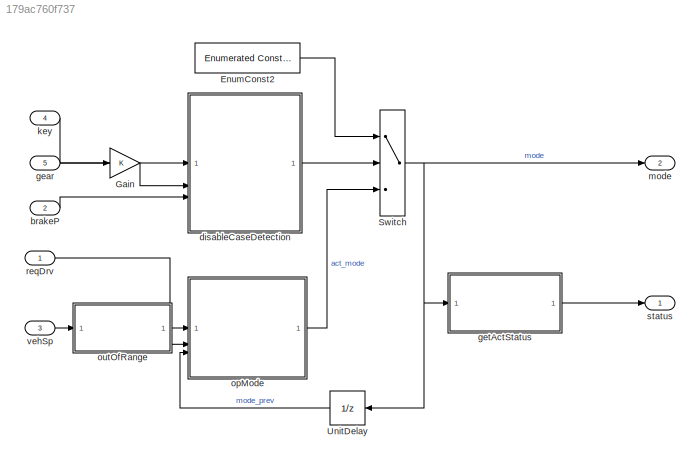
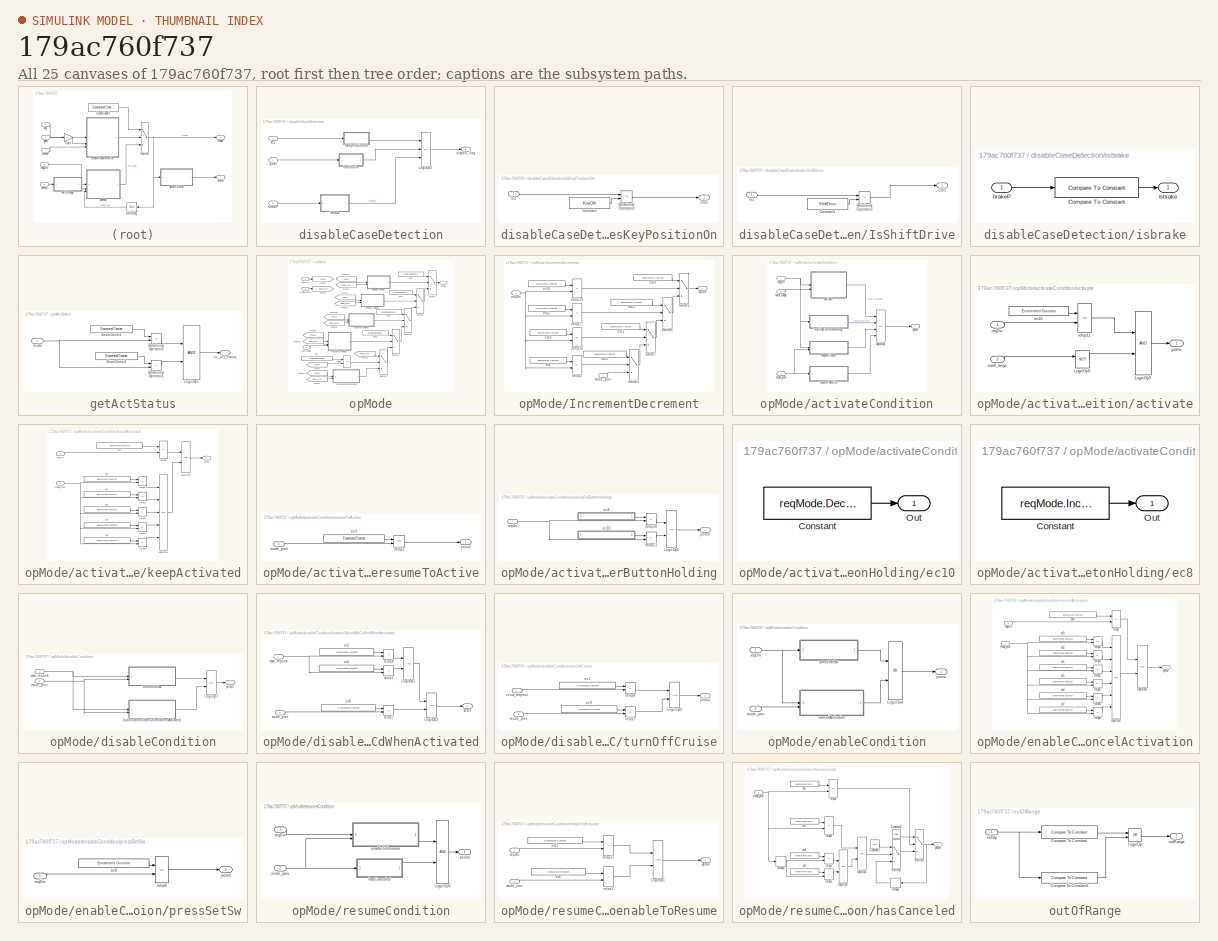
[diagram: thumbnail index - all 25 canvases of the model, root first then tree order]
MODEL slx_179ac760f737
KIND model
CONFIG AbsTol = auto
CONFIG EnableMultiTasking = off
CONFIG FixedStep = 0.01
CONFIG MaxStep = auto
CONFIG MinStep = auto
CONFIG RelTol = 1e-3
CONFIG SampleTimeConstraint = Unconstrained
CONFIG SolverName = FixedStepDiscrete
CONFIG StartTime = 0.0
CONFIG StopTime = 10.0
BLOCK [Reference] EnumConst2  REF=simulink/Sources/Enumerated
Constant
  SourceBlock = simulink/Sources/Enumerated\nConstant
  SourceType = Enumerated Constant
BLOCK [Gain] Gain
BLOCK [Switch] Switch
  Criteria = u2 ~= 0
  InputSameDT = off
  SaturateOnIntegerOverflow = off
BLOCK [UnitDelay] UnitDelay
  AttributesFormatString = Init = %<InitialCondition>
  HasFrameUpgradeWarning = on
  InitialCondition = opMode.Disable
  SampleTime = -1
BLOCK [Inport] brakeP
  OutDataTypeStr = double
  Port = 2
  PortDimensions = 1
  SampleTime = [0.01,0]
  SamplingMode = Sample based
  SignalType = real
BLOCK [SubSystem] disableCaseDetection
BLOCK [SubSystem] disableCaseDetection/IsKeyPositionOn
BLOCK [Constant] disableCaseDetection/IsKeyPositionOn/Constant
  Value = KeyON
BLOCK [Inport] disableCaseDetection/IsKeyPositionOn/In1
BLOCK [Outport] disableCaseDetection/IsKeyPositionOn/Out1
  VectorParamsAs1DForOutWhenUnconnected = off
BLOCK [RelationalOperator] disableCaseDetection/IsKeyPositionOn/Relational Operator2
  InputSameDT = off
  Operator = ~=
  OutDataTypeStr = boolean
BLOCK [SubSystem] disableCaseDetection/IsShiftDrive
BLOCK [Constant] disableCaseDetection/IsShiftDrive/Constant1
  Value = ShiftDrive
BLOCK [Inport] disableCaseDetection/IsShiftDrive/In1
BLOCK [Outport] disableCaseDetection/IsShiftDrive/Out1
  VectorParamsAs1DForOutWhenUnconnected = off
BLOCK [RelationalOperator] disableCaseDetection/IsShiftDrive/Relational Operator3
  InputSameDT = off
  Operator = ~=
  OutDataTypeStr = boolean
BLOCK [Logic] disableCaseDetection/LogicOp1
  AllPortsSameDT = off
  Inputs = 3
  Operator = OR
  OutDataTypeStr = boolean
BLOCK [Inport] disableCaseDetection/brakeP
  Port = 3
BLOCK [Outport] disableCaseDetection/disable_flag
  VectorParamsAs1DForOutWhenUnconnected = off
BLOCK [Inport] disableCaseDetection/gear
  Port = 2
BLOCK [SubSystem] disableCaseDetection/isbrake
BLOCK [Reference] disableCaseDetection/isbrake/Compare To Constant  REF=simulink/Logic and Bit
Operations/Compare
To Constant
  SourceBlock = simulink/Logic and Bit\nOperations/Compare\nTo Constant
  SourceType = Compare To Constant
BLOCK [Inport] disableCaseDetection/isbrake/brakeP
BLOCK [Outport] disableCaseDetection/isbrake/isbrake
  VectorParamsAs1DForOutWhenUnconnected = off
BLOCK [Inport] disableCaseDetection/key
BLOCK [Inport] gear
  OutDataTypeStr = uint8
  Port = 5
  PortDimensions = 1
  SampleTime = [0.01,0]
  SamplingMode = Sample based
  SignalType = real
BLOCK [SubSystem] getActStatus
BLOCK [Reference] getActStatus/EnumConst1  REF=simulink/Sources/Enumerated
Constant
  SourceBlock = simulink/Sources/Enumerated\nConstant
  SourceType = Enumerated Constant
BLOCK [Reference] getActStatus/EnumConst2  REF=simulink/Sources/Enumerated
Constant
  SourceBlock = simulink/Sources/Enumerated\nConstant
  SourceType = Enumerated Constant
BLOCK [Logic] getActStatus/LogicOp1
  AllPortsSameDT = off
  OutDataTypeStr = boolean
BLOCK [RelationalOperator] getActStatus/Relational Operator1
  InputSameDT = off
  Operator = ~=
  OutDataTypeStr = boolean
BLOCK [RelationalOperator] getActStatus/Relational Operator2
  InputSameDT = off
  Operator = ~=
  OutDataTypeStr = boolean
BLOCK [Outport] getActStatus/cc_act_status
  VectorParamsAs1DForOutWhenUnconnected = off
BLOCK [Inport] getActStatus/mode
BLOCK [Inport] key
  OutDataTypeStr = uint8
  Port = 4
  PortDimensions = 1
  SampleTime = [0.01,0]
  SamplingMode = Sample based
  SignalType = real
BLOCK [Outport] mode
  OutDataTypeStr = Enum: opMode
  Port = 2
  PortDimensions = 1
  SampleTime = [0.01,0]
  SamplingMode = Sample based
  SignalType = real
  VectorParamsAs1DForOutWhenUnconnected = off
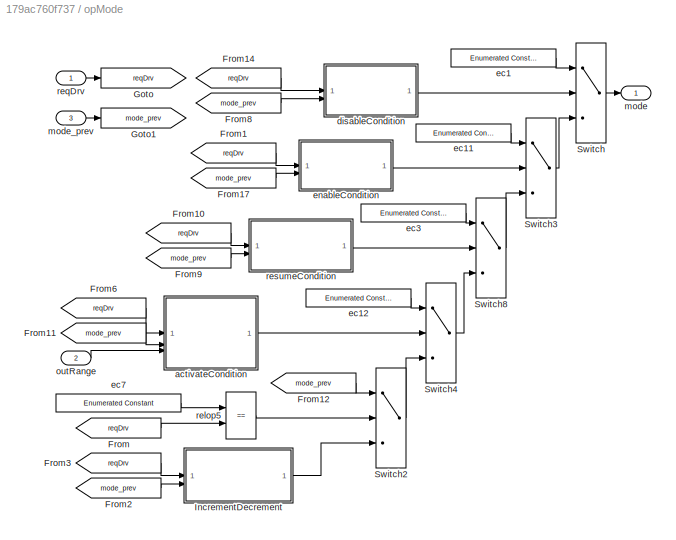
BLOCK [SubSystem] opMode
  TreatAsAtomicUnit = on
BLOCK [From] opMode/From
  GotoTag = reqDrv
BLOCK [From] opMode/From1
  GotoTag = reqDrv
BLOCK [From] opMode/From10
  GotoTag = reqDrv
BLOCK [From] opMode/From11
  GotoTag = mode_prev
BLOCK [From] opMode/From12
  GotoTag = mode_prev
BLOCK [From] opMode/From14
  GotoTag = reqDrv
BLOCK [From] opMode/From17
  GotoTag = mode_prev
BLOCK [From] opMode/From2
  GotoTag = mode_prev
BLOCK [From] opMode/From3
  GotoTag = reqDrv
BLOCK [From] opMode/From6
  GotoTag = reqDrv
BLOCK [From] opMode/From8
  GotoTag = mode_prev
BLOCK [From] opMode/From9
  GotoTag = mode_prev
BLOCK [Goto] opMode/Goto
  GotoTag = reqDrv
BLOCK [Goto] opMode/Goto1
  GotoTag = mode_prev
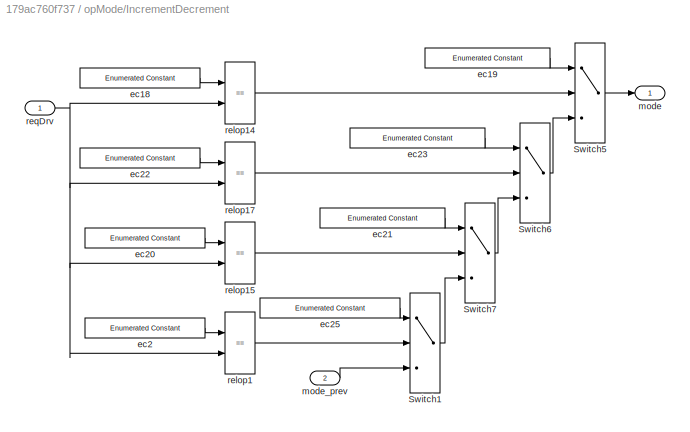
BLOCK [SubSystem] opMode/IncrementDecrement
BLOCK [Switch] opMode/IncrementDecrement/Switch1
  Criteria = u2 ~= 0
  InputSameDT = off
  SaturateOnIntegerOverflow = off
BLOCK [Switch] opMode/IncrementDecrement/Switch5
  Criteria = u2 ~= 0
  InputSameDT = off
  SaturateOnIntegerOverflow = off
BLOCK [Switch] opMode/IncrementDecrement/Switch6
  Criteria = u2 ~= 0
  InputSameDT = off
  SaturateOnIntegerOverflow = off
BLOCK [Switch] opMode/IncrementDecrement/Switch7
  Criteria = u2 ~= 0
  InputSameDT = off
  SaturateOnIntegerOverflow = off
BLOCK [Reference] opMode/IncrementDecrement/ec18  REF=simulink/Sources/Enumerated
Constant
  SourceBlock = simulink/Sources/Enumerated\nConstant
  SourceType = Enumerated Constant
BLOCK [Reference] opMode/IncrementDecrement/ec19  REF=simulink/Sources/Enumerated
Constant
  SourceBlock = simulink/Sources/Enumerated\nConstant
  SourceType = Enumerated Constant
BLOCK [Reference] opMode/IncrementDecrement/ec2  REF=simulink/Sources/Enumerated
Constant
  SourceBlock = simulink/Sources/Enumerated\nConstant
  SourceType = Enumerated Constant
BLOCK [Reference] opMode/IncrementDecrement/ec20  REF=simulink/Sources/Enumerated
Constant
  SourceBlock = simulink/Sources/Enumerated\nConstant
  SourceType = Enumerated Constant
BLOCK [Reference] opMode/IncrementDecrement/ec21  REF=simulink/Sources/Enumerated
Constant
  SourceBlock = simulink/Sources/Enumerated\nConstant
  SourceType = Enumerated Constant
BLOCK [Reference] opMode/IncrementDecrement/ec22  REF=simulink/Sources/Enumerated
Constant
  SourceBlock = simulink/Sources/Enumerated\nConstant
  SourceType = Enumerated Constant
BLOCK [Reference] opMode/IncrementDecrement/ec23  REF=simulink/Sources/Enumerated
Constant
  SourceBlock = simulink/Sources/Enumerated\nConstant
  SourceType = Enumerated Constant
BLOCK [Reference] opMode/IncrementDecrement/ec25  REF=simulink/Sources/Enumerated
Constant
  SourceBlock = simulink/Sources/Enumerated\nConstant
  SourceType = Enumerated Constant
BLOCK [Outport] opMode/IncrementDecrement/mode
  VectorParamsAs1DForOutWhenUnconnected = off
BLOCK [Inport] opMode/IncrementDecrement/mode_prev
  Port = 2
BLOCK [RelationalOperator] opMode/IncrementDecrement/relop1
  InputSameDT = off
  Operator = ==
  OutDataTypeStr = boolean
BLOCK [RelationalOperator] opMode/IncrementDecrement/relop14
  InputSameDT = off
  Operator = ==
  OutDataTypeStr = boolean
BLOCK [RelationalOperator] opMode/IncrementDecrement/relop15
  InputSameDT = off
  Operator = ==
  OutDataTypeStr = boolean
BLOCK [RelationalOperator] opMode/IncrementDecrement/relop17
  InputSameDT = off
  Operator = ==
  OutDataTypeStr = boolean
BLOCK [Inport] opMode/IncrementDecrement/reqDrv
BLOCK [Switch] opMode/Switch
  Criteria = u2 ~= 0
  InputSameDT = off
  SaturateOnIntegerOverflow = off
BLOCK [Switch] opMode/Switch2
  Criteria = u2 ~= 0
  InputSameDT = off
  SaturateOnIntegerOverflow = off
BLOCK [Switch] opMode/Switch3
  Criteria = u2 ~= 0
  InputSameDT = off
  SaturateOnIntegerOverflow = off
BLOCK [Switch] opMode/Switch4
  Criteria = u2 ~= 0
  InputSameDT = off
  SaturateOnIntegerOverflow = off
BLOCK [Switch] opMode/Switch8
  Criteria = u2 ~= 0
  InputSameDT = off
  SaturateOnIntegerOverflow = off
BLOCK [SubSystem] opMode/activateCondition
BLOCK [Logic] opMode/activateCondition/LogicOp5
  AllPortsSameDT = off
  Inputs = 4
  Operator = OR
  OutDataTypeStr = boolean
BLOCK [SubSystem] opMode/activateCondition/activate
BLOCK [Logic] opMode/activateCondition/activate/LogicOp3
  AllPortsSameDT = off
  OutDataTypeStr = boolean
BLOCK [Logic] opMode/activateCondition/activate/LogicOp5
  AllPortsSameDT = off
  Operator = NOT
  OutDataTypeStr = boolean
BLOCK [Reference] opMode/activateCondition/activate/ec15  REF=simulink/Sources/Enumerated
Constant
  SourceBlock = simulink/Sources/Enumerated\nConstant
  SourceType = Enumerated Constant
BLOCK [Inport] opMode/activateCondition/activate/outof_range
  Port = 2
BLOCK [RelationalOperator] opMode/activateCondition/activate/relop11
  InputSameDT = off
  Operator = ==
  OutDataTypeStr = boolean
BLOCK [Inport] opMode/activateCondition/activate/reqDrv
BLOCK [Outport] opMode/activateCondition/activate/yesno
  VectorParamsAs1DForOutWhenUnconnected = off
BLOCK [SubSystem] opMode/activateCondition/keepActivated
BLOCK [Logic] opMode/activateCondition/keepActivated/LogicOp1
  AllPortsSameDT = off
  Inputs = 5
  Operator = OR
  OutDataTypeStr = boolean
BLOCK [Logic] opMode/activateCondition/keepActivated/LogicOp2
  AllPortsSameDT = off
  OutDataTypeStr = boolean
BLOCK [Reference] opMode/activateCondition/keepActivated/ec1  REF=simulink/Sources/Enumerated
Constant
  SourceBlock = simulink/Sources/Enumerated\nConstant
  SourceType = Enumerated Constant
BLOCK [Reference] opMode/activateCondition/keepActivated/ec2  REF=simulink/Sources/Enumerated
Constant
  SourceBlock = simulink/Sources/Enumerated\nConstant
  SourceType = Enumerated Constant
BLOCK [Reference] opMode/activateCondition/keepActivated/ec3  REF=simulink/Sources/Enumerated
Constant
  SourceBlock = simulink/Sources/Enumerated\nConstant
  SourceType = Enumerated Constant
BLOCK [Reference] opMode/activateCondition/keepActivated/ec4  REF=simulink/Sources/Enumerated
Constant
  SourceBlock = simulink/Sources/Enumerated\nConstant
  SourceType = Enumerated Constant
BLOCK [Reference] opMode/activateCondition/keepActivated/ec5  REF=simulink/Sources/Enumerated
Constant
  SourceBlock = simulink/Sources/Enumerated\nConstant
  SourceType = Enumerated Constant
BLOCK [Reference] opMode/activateCondition/keepActivated/ec7  REF=simulink/Sources/Enumerated
Constant
  SourceBlock = simulink/Sources/Enumerated\nConstant
  SourceType = Enumerated Constant
BLOCK [Inport] opMode/activateCondition/keepActivated/mode_prev
  Port = 2
BLOCK [RelationalOperator] opMode/activateCondition/keepActivated/relop1
  InputSameDT = off
  Operator = ==
  OutDataTypeStr = boolean
BLOCK [RelationalOperator] opMode/activateCondition/keepActivated/relop2
  InputSameDT = off
  Operator = ==
  OutDataTypeStr = boolean
BLOCK [RelationalOperator] opMode/activateCondition/keepActivated/relop3
  InputSameDT = off
  Operator = ==
  OutDataTypeStr = boolean
BLOCK [RelationalOperator] opMode/activateCondition/keepActivated/relop4
  InputSameDT = off
  Operator = ==
  OutDataTypeStr = boolean
BLOCK [RelationalOperator] opMode/activateCondition/keepActivated/relop5
  InputSameDT = off
  Operator = ==
  OutDataTypeStr = boolean
BLOCK [RelationalOperator] opMode/activateCondition/keepActivated/relop6
  InputSameDT = off
  Operator = ==
  OutDataTypeStr = boolean
BLOCK [Inport] opMode/activateCondition/keepActivated/reqDrv
BLOCK [Outport] opMode/activateCondition/keepActivated/yesno
  VectorParamsAs1DForOutWhenUnconnected = off
BLOCK [Inport] opMode/activateCondition/mode_prev
  Port = 2
BLOCK [Inport] opMode/activateCondition/outof_range
  Port = 3
BLOCK [Inport] opMode/activateCondition/reqDrv
BLOCK [SubSystem] opMode/activateCondition/resumeToActive
BLOCK [Reference] opMode/activateCondition/resumeToActive/ec3  REF=simulink/Sources/Enumerated
Constant
  SourceBlock = simulink/Sources/Enumerated\nConstant
  SourceType = Enumerated Constant
BLOCK [Inport] opMode/activateCondition/resumeToActive/mode_prev
BLOCK [RelationalOperator] opMode/activateCondition/resumeToActive/relop2
  InputSameDT = off
  Operator = ==
  OutDataTypeStr = boolean
BLOCK [Outport] opMode/activateCondition/resumeToActive/yesno
  VectorParamsAs1DForOutWhenUnconnected = off
BLOCK [SubSystem] opMode/activateCondition/waitingForButtonHolding
BLOCK [Logic] opMode/activateCondition/waitingForButtonHolding/LogicOp6
  AllPortsSameDT = off
  Operator = OR
  OutDataTypeStr = boolean
BLOCK [SubSystem] opMode/activateCondition/waitingForButtonHolding/ec10
  DialogController = Simulink.DDGSource
  MaskHideContents = on
  PermitHierarchicalResolution = ExplicitOnly
BLOCK [Constant] opMode/activateCondition/waitingForButtonHolding/ec10/Constant
  DialogController = Simulink.DDGSource
  LockScale = on
  OutDataTypeStr = Enum: reqMode
  Value = reqMode.Dec_Middle
BLOCK [Outport] opMode/activateCondition/waitingForButtonHolding/ec10/Out
  VectorParamsAs1DForOutWhenUnconnected = off
BLOCK [SubSystem] opMode/activateCondition/waitingForButtonHolding/ec8
  DialogController = Simulink.DDGSource
  MaskHideContents = on
  PermitHierarchicalResolution = ExplicitOnly
BLOCK [Constant] opMode/activateCondition/waitingForButtonHolding/ec8/Constant
  DialogController = Simulink.DDGSource
  LockScale = on
  OutDataTypeStr = Enum: reqMode
  Value = reqMode.Inc_Middle
BLOCK [Outport] opMode/activateCondition/waitingForButtonHolding/ec8/Out
  VectorParamsAs1DForOutWhenUnconnected = off
BLOCK [RelationalOperator] opMode/activateCondition/waitingForButtonHolding/relop10
  InputSameDT = off
  Operator = ==
  OutDataTypeStr = boolean
BLOCK [RelationalOperator] opMode/activateCondition/waitingForButtonHolding/relop11
  InputSameDT = off
  Operator = ==
  OutDataTypeStr = boolean
BLOCK [Inport] opMode/activateCondition/waitingForButtonHolding/reqDrv
BLOCK [Outport] opMode/activateCondition/waitingForButtonHolding/yesno
  VectorParamsAs1DForOutWhenUnconnected = off
BLOCK [Outport] opMode/activateCondition/yesno
  VectorParamsAs1DForOutWhenUnconnected = off
BLOCK [SubSystem] opMode/disableCondition
BLOCK [Logic] opMode/disableCondition/LogicOp7
  AllPortsSameDT = off
  Operator = OR
  OutDataTypeStr = boolean
BLOCK [SubSystem] opMode/disableCondition/buttonsShouldBeCalledWhenActivated
BLOCK [Logic] opMode/disableCondition/buttonsShouldBeCalledWhenActivated/LogicOp1
  AllPortsSameDT = off
  OutDataTypeStr = boolean
BLOCK [Logic] opMode/disableCondition/buttonsShouldBeCalledWhenActivated/LogicOp2
  AllPortsSameDT = off
  OutDataTypeStr = boolean
BLOCK [Inport] opMode/disableCondition/buttonsShouldBeCalledWhenActivated/ccsw_request
BLOCK [Reference] opMode/disableCondition/buttonsShouldBeCalledWhenActivated/ec1  REF=simulink/Sources/Enumerated
Constant
  SourceBlock = simulink/Sources/Enumerated\nConstant
  SourceType = Enumerated Constant
BLOCK [Reference] opMode/disableCondition/buttonsShouldBeCalledWhenActivated/ec2  REF=simulink/Sources/Enumerated
Constant
  SourceBlock = simulink/Sources/Enumerated\nConstant
  SourceType = Enumerated Constant
BLOCK [Reference] opMode/disableCondition/buttonsShouldBeCalledWhenActivated/ec9  REF=simulink/Sources/Enumerated
Constant
  SourceBlock = simulink/Sources/Enumerated\nConstant
  SourceType = Enumerated Constant
BLOCK [Inport] opMode/disableCondition/buttonsShouldBeCalledWhenActivated/mode_prev
  Port = 2
BLOCK [RelationalOperator] opMode/disableCondition/buttonsShouldBeCalledWhenActivated/relop1
  InputSameDT = off
  Operator = ~=
  OutDataTypeStr = boolean
BLOCK [RelationalOperator] opMode/disableCondition/buttonsShouldBeCalledWhenActivated/relop7
  InputSameDT = off
  Operator = ==
  OutDataTypeStr = boolean
BLOCK [RelationalOperator] opMode/disableCondition/buttonsShouldBeCalledWhenActivated/relop8
  InputSameDT = off
  Operator = ~=
  OutDataTypeStr = boolean
BLOCK [Outport] opMode/disableCondition/buttonsShouldBeCalledWhenActivated/yesno
  VectorParamsAs1DForOutWhenUnconnected = off
BLOCK [Inport] opMode/disableCondition/ccsw_request
BLOCK [Inport] opMode/disableCondition/mode_prev
  Port = 2
BLOCK [SubSystem] opMode/disableCondition/turnOffCruise
BLOCK [Logic] opMode/disableCondition/turnOffCruise/LogicOp2
  AllPortsSameDT = off
  OutDataTypeStr = boolean
BLOCK [Inport] opMode/disableCondition/turnOffCruise/ccsw_request
BLOCK [Reference] opMode/disableCondition/turnOffCruise/ec1  REF=simulink/Sources/Enumerated
Constant
  SourceBlock = simulink/Sources/Enumerated\nConstant
  SourceType = Enumerated Constant
BLOCK [Reference] opMode/disableCondition/turnOffCruise/ec9  REF=simulink/Sources/Enumerated
Constant
  SourceBlock = simulink/Sources/Enumerated\nConstant
  SourceType = Enumerated Constant
BLOCK [Inport] opMode/disableCondition/turnOffCruise/mode_prev
  Port = 2
BLOCK [RelationalOperator] opMode/disableCondition/turnOffCruise/relop7
  InputSameDT = off
  Operator = ~=
  OutDataTypeStr = boolean
BLOCK [RelationalOperator] opMode/disableCondition/turnOffCruise/relop8
  InputSameDT = off
  Operator = ==
  OutDataTypeStr = boolean
BLOCK [Outport] opMode/disableCondition/turnOffCruise/yesno
  VectorParamsAs1DForOutWhenUnconnected = off
BLOCK [Outport] opMode/disableCondition/yesno
  VectorParamsAs1DForOutWhenUnconnected = off
BLOCK [Reference] opMode/ec1  REF=simulink/Sources/Enumerated
Constant
  SourceBlock = simulink/Sources/Enumerated\nConstant
  SourceType = Enumerated Constant
BLOCK [Reference] opMode/ec11  REF=simulink/Sources/Enumerated
Constant
  SourceBlock = simulink/Sources/Enumerated\nConstant
  SourceType = Enumerated Constant
BLOCK [Reference] opMode/ec12  REF=simulink/Sources/Enumerated
Constant
  SourceBlock = simulink/Sources/Enumerated\nConstant
  SourceType = Enumerated Constant
BLOCK [Reference] opMode/ec3  REF=simulink/Sources/Enumerated
Constant
  SourceBlock = simulink/Sources/Enumerated\nConstant
  SourceType = Enumerated Constant
BLOCK [Reference] opMode/ec7  REF=simulink/Sources/Enumerated
Constant
  SourceBlock = simulink/Sources/Enumerated\nConstant
  SourceType = Enumerated Constant
BLOCK [SubSystem] opMode/enableCondition
BLOCK [Logic] opMode/enableCondition/LogicOp4
  AllPortsSameDT = off
  Operator = OR
  OutDataTypeStr = boolean
BLOCK [SubSystem] opMode/enableCondition/cancelActivation
BLOCK [Logic] opMode/enableCondition/cancelActivation/LogicOp2
  AllPortsSameDT = off
  Inputs = 6
  Operator = OR
  OutDataTypeStr = boolean
BLOCK [Logic] opMode/enableCondition/cancelActivation/LogicOp5
  AllPortsSameDT = off
  OutDataTypeStr = boolean
BLOCK [Reference] opMode/enableCondition/cancelActivation/ec1  REF=simulink/Sources/Enumerated
Constant
  SourceBlock = simulink/Sources/Enumerated\nConstant
  SourceType = Enumerated Constant
BLOCK [Reference] opMode/enableCondition/cancelActivation/ec2  REF=simulink/Sources/Enumerated
Constant
  SourceBlock = simulink/Sources/Enumerated\nConstant
  SourceType = Enumerated Constant
BLOCK [Reference] opMode/enableCondition/cancelActivation/ec3  REF=simulink/Sources/Enumerated
Constant
  SourceBlock = simulink/Sources/Enumerated\nConstant
  SourceType = Enumerated Constant
BLOCK [Reference] opMode/enableCondition/cancelActivation/ec4  REF=simulink/Sources/Enumerated
Constant
  SourceBlock = simulink/Sources/Enumerated\nConstant
  SourceType = Enumerated Constant
BLOCK [Reference] opMode/enableCondition/cancelActivation/ec5  REF=simulink/Sources/Enumerated
Constant
  SourceBlock = simulink/Sources/Enumerated\nConstant
  SourceType = Enumerated Constant
BLOCK [Reference] opMode/enableCondition/cancelActivation/ec6  REF=simulink/Sources/Enumerated
Constant
  SourceBlock = simulink/Sources/Enumerated\nConstant
  SourceType = Enumerated Constant
BLOCK [Reference] opMode/enableCondition/cancelActivation/ec7  REF=simulink/Sources/Enumerated
Constant
  SourceBlock = simulink/Sources/Enumerated\nConstant
  SourceType = Enumerated Constant
BLOCK [Inport] opMode/enableCondition/cancelActivation/mode_prev
  Port = 2
BLOCK [RelationalOperator] opMode/enableCondition/cancelActivation/relop1
  InputSameDT = off
  Operator = ==
  OutDataTypeStr = boolean
BLOCK [RelationalOperator] opMode/enableCondition/cancelActivation/relop2
  InputSameDT = off
  Operator = ==
  OutDataTypeStr = boolean
BLOCK [RelationalOperator] opMode/enableCondition/cancelActivation/relop3
  InputSameDT = off
  Operator = ==
  OutDataTypeStr = boolean
BLOCK [RelationalOperator] opMode/enableCondition/cancelActivation/relop4
  InputSameDT = off
  Operator = ==
  OutDataTypeStr = boolean
BLOCK [RelationalOperator] opMode/enableCondition/cancelActivation/relop5
  InputSameDT = off
  Operator = ==
  OutDataTypeStr = boolean
BLOCK [RelationalOperator] opMode/enableCondition/cancelActivation/relop6
  InputSameDT = off
  Operator = ==
  OutDataTypeStr = boolean
BLOCK [RelationalOperator] opMode/enableCondition/cancelActivation/relop7
  InputSameDT = off
  Operator = ==
  OutDataTypeStr = boolean
BLOCK [Inport] opMode/enableCondition/cancelActivation/reqDrv
BLOCK [Outport] opMode/enableCondition/cancelActivation/yesno
  VectorParamsAs1DForOutWhenUnconnected = off
BLOCK [Inport] opMode/enableCondition/mode_prev
  Port = 2
BLOCK [SubSystem] opMode/enableCondition/pressSetSw
BLOCK [Reference] opMode/enableCondition/pressSetSw/ec8  REF=simulink/Sources/Enumerated
Constant
  SourceBlock = simulink/Sources/Enumerated\nConstant
  SourceType = Enumerated Constant
BLOCK [RelationalOperator] opMode/enableCondition/pressSetSw/relop6
  InputSameDT = off
  Operator = ==
  OutDataTypeStr = boolean
BLOCK [Inport] opMode/enableCondition/pressSetSw/reqDrv
BLOCK [Outport] opMode/enableCondition/pressSetSw/yesno
  VectorParamsAs1DForOutWhenUnconnected = off
BLOCK [Inport] opMode/enableCondition/reqDrv
BLOCK [Outport] opMode/enableCondition/yesno
  VectorParamsAs1DForOutWhenUnconnected = off
BLOCK [Outport] opMode/mode
  VectorParamsAs1DForOutWhenUnconnected = off
BLOCK [Inport] opMode/mode_prev
  Port = 3
BLOCK [Inport] opMode/outRange
  Port = 2
BLOCK [RelationalOperator] opMode/relop5
  InputSameDT = off
  Operator = ==
  OutDataTypeStr = boolean
BLOCK [Inport] opMode/reqDrv
BLOCK [SubSystem] opMode/resumeCondition
BLOCK [Logic] opMode/resumeCondition/LogicOp6
  AllPortsSameDT = off
  OutDataTypeStr = boolean
BLOCK [SubSystem] opMode/resumeCondition/enableToResume
BLOCK [Logic] opMode/resumeCondition/enableToResume/LogicOp1
  AllPortsSameDT = off
  OutDataTypeStr = boolean
BLOCK [Reference] opMode/resumeCondition/enableToResume/ec15  REF=simulink/Sources/Enumerated
Constant
  SourceBlock = simulink/Sources/Enumerated\nConstant
  SourceType = Enumerated Constant
BLOCK [Reference] opMode/resumeCondition/enableToResume/ec3  REF=simulink/Sources/Enumerated
Constant
  SourceBlock = simulink/Sources/Enumerated\nConstant
  SourceType = Enumerated Constant
BLOCK [Inport] opMode/resumeCondition/enableToResume/mode_prev
  Port = 2
BLOCK [RelationalOperator] opMode/resumeCondition/enableToResume/relop1
  InputSameDT = off
  Operator = ==
  OutDataTypeStr = boolean
BLOCK [RelationalOperator] opMode/resumeCondition/enableToResume/relop11
  InputSameDT = off
  Operator = ==
  OutDataTypeStr = boolean
BLOCK [Inport] opMode/resumeCondition/enableToResume/reqDrv
BLOCK [Outport] opMode/resumeCondition/enableToResume/yesno
  VectorParamsAs1DForOutWhenUnconnected = off
BLOCK [SubSystem] opMode/resumeCondition/hasCanceled
BLOCK [Constant] opMode/resumeCondition/hasCanceled/Constant1
  OutDataTypeStr = boolean
  Value = true
BLOCK [Constant] opMode/resumeCondition/hasCanceled/Constant2
  OutDataTypeStr = boolean
  Value = false
BLOCK [Delay] opMode/resumeCondition/hasCanceled/Delay1
  AttributesFormatString = Init=%<InitialCondition>
  DelayLength = 1
  InitialCondition = opMode.Disable
  InputPortMap = u0
BLOCK [Delay] opMode/resumeCondition/hasCanceled/Delay2
  AttributesFormatString = Init=%<InitialCondition>
  DelayLength = 1
  InitialCondition = false
  InputPortMap = u0
BLOCK [Logic] opMode/resumeCondition/hasCanceled/LogicOp1
  AllPortsSameDT = off
  OutDataTypeStr = boolean
BLOCK [Logic] opMode/resumeCondition/hasCanceled/LogicOp2
  AllPortsSameDT = off
  OutDataTypeStr = boolean
BLOCK [Switch] opMode/resumeCondition/hasCanceled/Switch1
  Criteria = u2 ~= 0
  InputSameDT = off
  SaturateOnIntegerOverflow = off
BLOCK [Switch] opMode/resumeCondition/hasCanceled/Switch2
  Criteria = u2 ~= 0
  InputSameDT = off
  SaturateOnIntegerOverflow = off
BLOCK [Reference] opMode/resumeCondition/hasCanceled/ec1  REF=simulink/Sources/Enumerated
Constant
  SourceBlock = simulink/Sources/Enumerated\nConstant
  SourceType = Enumerated Constant
BLOCK [Reference] opMode/resumeCondition/hasCanceled/ec2  REF=simulink/Sources/Enumerated
Constant
  SourceBlock = simulink/Sources/Enumerated\nConstant
  SourceType = Enumerated Constant
BLOCK [Reference] opMode/resumeCondition/hasCanceled/ec3  REF=simulink/Sources/Enumerated
Constant
  SourceBlock = simulink/Sources/Enumerated\nConstant
  SourceType = Enumerated Constant
BLOCK [Reference] opMode/resumeCondition/hasCanceled/ec4  REF=simulink/Sources/Enumerated
Constant
  SourceBlock = simulink/Sources/Enumerated\nConstant
  SourceType = Enumerated Constant
BLOCK [Inport] opMode/resumeCondition/hasCanceled/mode_prev
BLOCK [RelationalOperator] opMode/resumeCondition/hasCanceled/relop1
  InputSameDT = off
  Operator = ~=
  OutDataTypeStr = boolean
BLOCK [RelationalOperator] opMode/resumeCondition/hasCanceled/relop2
  InputSameDT = off
  Operator = ==
  OutDataTypeStr = boolean
BLOCK [RelationalOperator] opMode/resumeCondition/hasCanceled/relop4
  InputSameDT = off
  Operator = ==
  OutDataTypeStr = boolean
BLOCK [RelationalOperator] opMode/resumeCondition/hasCanceled/relop5
  InputSameDT = off
  Operator = ~=
  OutDataTypeStr = boolean
BLOCK [Outport] opMode/resumeCondition/hasCanceled/yesno
  VectorParamsAs1DForOutWhenUnconnected = off
BLOCK [Inport] opMode/resumeCondition/mode_prev
  Port = 2
BLOCK [Inport] opMode/resumeCondition/reqDrv
BLOCK [Outport] opMode/resumeCondition/yesno
  VectorParamsAs1DForOutWhenUnconnected = off
BLOCK [SubSystem] outOfRange
BLOCK [Reference] outOfRange/Compare To Constant  REF=simulink/Logic and Bit
Operations/Compare
To Constant
  SourceBlock = simulink/Logic and Bit\nOperations/Compare\nTo Constant
  SourceType = Compare To Constant
BLOCK [Reference] outOfRange/Compare To Constant1  REF=simulink/Logic and Bit
Operations/Compare
To Constant
  SourceBlock = simulink/Logic and Bit\nOperations/Compare\nTo Constant
  SourceType = Compare To Constant
BLOCK [Logic] outOfRange/LogicOp
  AllPortsSameDT = off
  Operator = OR
  OutDataTypeStr = boolean
BLOCK [Outport] outOfRange/outRange
  VectorParamsAs1DForOutWhenUnconnected = off
BLOCK [Inport] outOfRange/vehSp
BLOCK [Inport] reqDrv
  OutDataTypeStr = Enum: reqMode
  PortDimensions = 1
  SampleTime = [0.01,0]
  SamplingMode = Sample based
  SignalType = real
BLOCK [Outport] status
  OutDataTypeStr = boolean
  PortDimensions = 1
  SampleTime = [0.01,0]
  SamplingMode = Sample based
  SignalType = real
  VectorParamsAs1DForOutWhenUnconnected = off
BLOCK [Inport] vehSp
  OutDataTypeStr = double
  Port = 3
  PortDimensions = 1
  SampleTime = [0.01,0]
  SamplingMode = Sample based
  SignalType = real
LINE EnumConst2:1 -> Switch:1
LINE Gain:1 -> disableCaseDetection:2
NET Switch:1 -> UnitDelay:1, getActStatus:1, mode:1
LINE UnitDelay:1 -> opMode:3
LINE brakeP:1 -> disableCaseDetection:3
LINE disableCaseDetection/IsKeyPositionOn/Constant:1 -> disableCaseDetection/IsKeyPositionOn/Relational Operator2:2
LINE disableCaseDetection/IsKeyPositionOn/In1:1 -> disableCaseDetection/IsKeyPositionOn/Relational Operator2:1
LINE disableCaseDetection/IsKeyPositionOn/Relational Operator2:1 -> disableCaseDetection/IsKeyPositionOn/Out1:1
LINE disableCaseDetection/IsKeyPositionOn:1 -> disableCaseDetection/LogicOp1:1
LINE disableCaseDetection/IsShiftDrive/Constant1:1 -> disableCaseDetection/IsShiftDrive/Relational Operator3:2
LINE disableCaseDetection/IsShiftDrive/In1:1 -> disableCaseDetection/IsShiftDrive/Relational Operator3:1
LINE disableCaseDetection/IsShiftDrive/Relational Operator3:1 -> disableCaseDetection/IsShiftDrive/Out1:1
LINE disableCaseDetection/IsShiftDrive:1 -> disableCaseDetection/LogicOp1:2
LINE disableCaseDetection/LogicOp1:1 -> disableCaseDetection/disable_flag:1
LINE disableCaseDetection/brakeP:1 -> disableCaseDetection/isbrake:1
LINE disableCaseDetection/gear:1 -> disableCaseDetection/IsShiftDrive:1
LINE disableCaseDetection/isbrake/Compare To Constant:1 -> disableCaseDetection/isbrake/isbrake:1
LINE disableCaseDetection/isbrake/brakeP:1 -> disableCaseDetection/isbrake/Compare To Constant:1
LINE disableCaseDetection/isbrake:1 -> disableCaseDetection/LogicOp1:3
LINE disableCaseDetection/key:1 -> disableCaseDetection/IsKeyPositionOn:1
LINE disableCaseDetection:1 -> Switch:2
LINE gear:1 -> Gain:1
LINE getActStatus/EnumConst1:1 -> getActStatus/Relational Operator2:1
LINE getActStatus/EnumConst2:1 -> getActStatus/Relational Operator1:1
LINE getActStatus/LogicOp1:1 -> getActStatus/cc_act_status:1
LINE getActStatus/Relational Operator1:1 -> getActStatus/LogicOp1:2
LINE getActStatus/Relational Operator2:1 -> getActStatus/LogicOp1:1
NET getActStatus/mode:1 -> getActStatus/Relational Operator1:2, getActStatus/Relational Operator2:2
LINE getActStatus:1 -> status:1
LINE key:1 -> disableCaseDetection:1
LINE opMode/From10:1 -> opMode/resumeCondition:1
LINE opMode/From11:1 -> opMode/activateCondition:2
LINE opMode/From12:1 -> opMode/Switch2:1
LINE opMode/From14:1 -> opMode/disableCondition:1
LINE opMode/From17:1 -> opMode/enableCondition:2
LINE opMode/From1:1 -> opMode/enableCondition:1
LINE opMode/From2:1 -> opMode/IncrementDecrement:2
LINE opMode/From3:1 -> opMode/IncrementDecrement:1
LINE opMode/From6:1 -> opMode/activateCondition:1
LINE opMode/From8:1 -> opMode/disableCondition:2
LINE opMode/From9:1 -> opMode/resumeCondition:2
LINE opMode/From:1 -> opMode/relop5:2
LINE opMode/IncrementDecrement/Switch1:1 -> opMode/IncrementDecrement/Switch7:3
LINE opMode/IncrementDecrement/Switch5:1 -> opMode/IncrementDecrement/mode:1
LINE opMode/IncrementDecrement/Switch6:1 -> opMode/IncrementDecrement/Switch5:3
LINE opMode/IncrementDecrement/Switch7:1 -> opMode/IncrementDecrement/Switch6:3
LINE opMode/IncrementDecrement/ec18:1 -> opMode/IncrementDecrement/relop14:1
LINE opMode/IncrementDecrement/ec19:1 -> opMode/IncrementDecrement/Switch5:1
LINE opMode/IncrementDecrement/ec20:1 -> opMode/IncrementDecrement/relop15:1
LINE opMode/IncrementDecrement/ec21:1 -> opMode/IncrementDecrement/Switch7:1
LINE opMode/IncrementDecrement/ec22:1 -> opMode/IncrementDecrement/relop17:1
LINE opMode/IncrementDecrement/ec23:1 -> opMode/IncrementDecrement/Switch6:1
LINE opMode/IncrementDecrement/ec25:1 -> opMode/IncrementDecrement/Switch1:1
LINE opMode/IncrementDecrement/ec2:1 -> opMode/IncrementDecrement/relop1:1
LINE opMode/IncrementDecrement/mode_prev:1 -> opMode/IncrementDecrement/Switch1:3
LINE opMode/IncrementDecrement/relop14:1 -> opMode/IncrementDecrement/Switch5:2
LINE opMode/IncrementDecrement/relop15:1 -> opMode/IncrementDecrement/Switch7:2
LINE opMode/IncrementDecrement/relop17:1 -> opMode/IncrementDecrement/Switch6:2
LINE opMode/IncrementDecrement/relop1:1 -> opMode/IncrementDecrement/Switch1:2
NET opMode/IncrementDecrement/reqDrv:1 -> opMode/IncrementDecrement/relop14:2, opMode/IncrementDecrement/relop15:2, opMode/IncrementDecrement/relop17:2, opMode/IncrementDecrement/relop1:2
LINE opMode/IncrementDecrement:1 -> opMode/Switch2:3
LINE opMode/Switch2:1 -> opMode/Switch4:3
LINE opMode/Switch3:1 -> opMode/Switch:3
LINE opMode/Switch4:1 -> opMode/Switch8:3
LINE opMode/Switch8:1 -> opMode/Switch3:3
LINE opMode/Switch:1 -> opMode/mode:1
LINE opMode/activateCondition/LogicOp5:1 -> opMode/activateCondition/yesno:1
LINE opMode/activateCondition/activate/LogicOp3:1 -> opMode/activateCondition/activate/yesno:1
LINE opMode/activateCondition/activate/LogicOp5:1 -> opMode/activateCondition/activate/LogicOp3:2
LINE opMode/activateCondition/activate/ec15:1 -> opMode/activateCondition/activate/relop11:1
LINE opMode/activateCondition/activate/outof_range:1 -> opMode/activateCondition/activate/LogicOp5:1
LINE opMode/activateCondition/activate/relop11:1 -> opMode/activateCondition/activate/LogicOp3:1
LINE opMode/activateCondition/activate/reqDrv:1 -> opMode/activateCondition/activate/relop11:2
LINE opMode/activateCondition/activate:1 -> opMode/activateCondition/LogicOp5:1
LINE opMode/activateCondition/keepActivated/LogicOp1:1 -> opMode/activateCondition/keepActivated/LogicOp2:2
LINE opMode/activateCondition/keepActivated/LogicOp2:1 -> opMode/activateCondition/keepActivated/yesno:1
LINE opMode/activateCondition/keepActivated/ec1:1 -> opMode/activateCondition/keepActivated/relop1:1
LINE opMode/activateCondition/keepActivated/ec2:1 -> opMode/activateCondition/keepActivated/relop5:1
LINE opMode/activateCondition/keepActivated/ec3:1 -> opMode/activateCondition/keepActivated/relop3:1
LINE opMode/activateCondition/keepActivated/ec4:1 -> opMode/activateCondition/keepActivated/relop4:1
LINE opMode/activateCondition/keepActivated/ec5:1 -> opMode/activateCondition/keepActivated/relop6:1
LINE opMode/activateCondition/keepActivated/ec7:1 -> opMode/activateCondition/keepActivated/relop2:1
NET opMode/activateCondition/keepActivated/mode_prev:1 -> opMode/activateCondition/keepActivated/relop1:2, opMode/activateCondition/keepActivated/relop3:2, opMode/activateCondition/keepActivated/relop4:2, opMode/activateCondition/keepActivated/relop5:2, opMode/activateCondition/keepActivated/relop6:2
LINE opMode/activateCondition/keepActivated/relop1:1 -> opMode/activateCondition/keepActivated/LogicOp1:2
LINE opMode/activateCondition/keepActivated/relop2:1 -> opMode/activateCondition/keepActivated/LogicOp2:1
LINE opMode/activateCondition/keepActivated/relop3:1 -> opMode/activateCondition/keepActivated/LogicOp1:1
LINE opMode/activateCondition/keepActivated/relop4:1 -> opMode/activateCondition/keepActivated/LogicOp1:4
LINE opMode/activateCondition/keepActivated/relop5:1 -> opMode/activateCondition/keepActivated/LogicOp1:3
LINE opMode/activateCondition/keepActivated/relop6:1 -> opMode/activateCondition/keepActivated/LogicOp1:5
LINE opMode/activateCondition/keepActivated/reqDrv:1 -> opMode/activateCondition/keepActivated/relop2:2
LINE opMode/activateCondition/keepActivated:1 -> opMode/activateCondition/LogicOp5:3
NET opMode/activateCondition/mode_prev:1 -> opMode/activateCondition/keepActivated:2, opMode/activateCondition/resumeToActive:1
LINE opMode/activateCondition/outof_range:1 -> opMode/activateCondition/activate:2
NET opMode/activateCondition/reqDrv:1 -> opMode/activateCondition/activate:1, opMode/activateCondition/keepActivated:1, opMode/activateCondition/waitingForButtonHolding:1
LINE opMode/activateCondition/resumeToActive/ec3:1 -> opMode/activateCondition/resumeToActive/relop2:1
LINE opMode/activateCondition/resumeToActive/mode_prev:1 -> opMode/activateCondition/resumeToActive/relop2:2
LINE opMode/activateCondition/resumeToActive/relop2:1 -> opMode/activateCondition/resumeToActive/yesno:1
LINE opMode/activateCondition/resumeToActive:1 -> opMode/activateCondition/LogicOp5:4
LINE opMode/activateCondition/waitingForButtonHolding/LogicOp6:1 -> opMode/activateCondition/waitingForButtonHolding/yesno:1
LINE opMode/activateCondition/waitingForButtonHolding/ec10:1 -> opMode/activateCondition/waitingForButtonHolding/relop11:1
LINE opMode/activateCondition/waitingForButtonHolding/ec8:1 -> opMode/activateCondition/waitingForButtonHolding/relop10:1
LINE opMode/activateCondition/waitingForButtonHolding/relop10:1 -> opMode/activateCondition/waitingForButtonHolding/LogicOp6:1
LINE opMode/activateCondition/waitingForButtonHolding/relop11:1 -> opMode/activateCondition/waitingForButtonHolding/LogicOp6:2
NET opMode/activateCondition/waitingForButtonHolding/reqDrv:1 -> opMode/activateCondition/waitingForButtonHolding/relop10:2, opMode/activateCondition/waitingForButtonHolding/relop11:2
LINE opMode/activateCondition/waitingForButtonHolding:1 -> opMode/activateCondition/LogicOp5:2
LINE opMode/activateCondition:1 -> opMode/Switch4:2
LINE opMode/disableCondition/LogicOp7:1 -> opMode/disableCondition/yesno:1
LINE opMode/disableCondition/buttonsShouldBeCalledWhenActivated/LogicOp1:1 -> opMode/disableCondition/buttonsShouldBeCalledWhenActivated/LogicOp2:1
LINE opMode/disableCondition/buttonsShouldBeCalledWhenActivated/LogicOp2:1 -> opMode/disableCondition/buttonsShouldBeCalledWhenActivated/yesno:1
NET opMode/disableCondition/buttonsShouldBeCalledWhenActivated/ccsw_request:1 -> opMode/disableCondition/buttonsShouldBeCalledWhenActivated/relop1:2, opMode/disableCondition/buttonsShouldBeCalledWhenActivated/relop8:2
LINE opMode/disableCondition/buttonsShouldBeCalledWhenActivated/ec1:1 -> opMode/disableCondition/buttonsShouldBeCalledWhenActivated/relop8:1
LINE opMode/disableCondition/buttonsShouldBeCalledWhenActivated/ec2:1 -> opMode/disableCondition/buttonsShouldBeCalledWhenActivated/relop1:1
LINE opMode/disableCondition/buttonsShouldBeCalledWhenActivated/ec9:1 -> opMode/disableCondition/buttonsShouldBeCalledWhenActivated/relop7:1
LINE opMode/disableCondition/buttonsShouldBeCalledWhenActivated/mode_prev:1 -> opMode/disableCondition/buttonsShouldBeCalledWhenActivated/relop7:2
LINE opMode/disableCondition/buttonsShouldBeCalledWhenActivated/relop1:1 -> opMode/disableCondition/buttonsShouldBeCalledWhenActivated/LogicOp1:2
LINE opMode/disableCondition/buttonsShouldBeCalledWhenActivated/relop7:1 -> opMode/disableCondition/buttonsShouldBeCalledWhenActivated/LogicOp2:2
LINE opMode/disableCondition/buttonsShouldBeCalledWhenActivated/relop8:1 -> opMode/disableCondition/buttonsShouldBeCalledWhenActivated/LogicOp1:1
LINE opMode/disableCondition/buttonsShouldBeCalledWhenActivated:1 -> opMode/disableCondition/LogicOp7:2
NET opMode/disableCondition/ccsw_request:1 -> opMode/disableCondition/buttonsShouldBeCalledWhenActivated:1, opMode/disableCondition/turnOffCruise:1
NET opMode/disableCondition/mode_prev:1 -> opMode/disableCondition/buttonsShouldBeCalledWhenActivated:2, opMode/disableCondition/turnOffCruise:2
LINE opMode/disableCondition/turnOffCruise/LogicOp2:1 -> opMode/disableCondition/turnOffCruise/yesno:1
LINE opMode/disableCondition/turnOffCruise/ccsw_request:1 -> opMode/disableCondition/turnOffCruise/relop8:2
LINE opMode/disableCondition/turnOffCruise/ec1:1 -> opMode/disableCondition/turnOffCruise/relop8:1
LINE opMode/disableCondition/turnOffCruise/ec9:1 -> opMode/disableCondition/turnOffCruise/relop7:1
LINE opMode/disableCondition/turnOffCruise/mode_prev:1 -> opMode/disableCondition/turnOffCruise/relop7:2
LINE opMode/disableCondition/turnOffCruise/relop7:1 -> opMode/disableCondition/turnOffCruise/LogicOp2:2
LINE opMode/disableCondition/turnOffCruise/relop8:1 -> opMode/disableCondition/turnOffCruise/LogicOp2:1
LINE opMode/disableCondition/turnOffCruise:1 -> opMode/disableCondition/LogicOp7:1
LINE opMode/disableCondition:1 -> opMode/Switch:2
LINE opMode/ec11:1 -> opMode/Switch3:1
LINE opMode/ec12:1 -> opMode/Switch4:1
LINE opMode/ec1:1 -> opMode/Switch:1
LINE opMode/ec3:1 -> opMode/Switch8:1
LINE opMode/ec7:1 -> opMode/relop5:1
LINE opMode/enableCondition/LogicOp4:1 -> opMode/enableCondition/yesno:1
LINE opMode/enableCondition/cancelActivation/LogicOp2:1 -> opMode/enableCondition/cancelActivation/LogicOp5:2
LINE opMode/enableCondition/cancelActivation/LogicOp5:1 -> opMode/enableCondition/cancelActivation/yesno:1
LINE opMode/enableCondition/cancelActivation/ec1:1 -> opMode/enableCondition/cancelActivation/relop1:1
LINE opMode/enableCondition/cancelActivation/ec2:1 -> opMode/enableCondition/cancelActivation/relop3:1
LINE opMode/enableCondition/cancelActivation/ec3:1 -> opMode/enableCondition/cancelActivation/relop2:1
LINE opMode/enableCondition/cancelActivation/ec4:1 -> opMode/enableCondition/cancelActivation/relop4:1
LINE opMode/enableCondition/cancelActivation/ec5:1 -> opMode/enableCondition/cancelActivation/relop5:1
LINE opMode/enableCondition/cancelActivation/ec6:1 -> opMode/enableCondition/cancelActivation/relop7:1
LINE opMode/enableCondition/cancelActivation/ec7:1 -> opMode/enableCondition/cancelActivation/relop6:1
NET opMode/enableCondition/cancelActivation/mode_prev:1 -> opMode/enableCondition/cancelActivation/relop1:2, opMode/enableCondition/cancelActivation/relop2:2, opMode/enableCondition/cancelActivation/relop3:2, opMode/enableCondition/cancelActivation/relop4:2, opMode/enableCondition/cancelActivation/relop5:2, opMode/enableCondition/cancelActivation/relop6:2
LINE opMode/enableCondition/cancelActivation/relop1:1 -> opMode/enableCondition/cancelActivation/LogicOp2:3
LINE opMode/enableCondition/cancelActivation/relop2:1 -> opMode/enableCondition/cancelActivation/LogicOp2:1
LINE opMode/enableCondition/cancelActivation/relop3:1 -> opMode/enableCondition/cancelActivation/LogicOp2:2
LINE opMode/enableCondition/cancelActivation/relop4:1 -> opMode/enableCondition/cancelActivation/LogicOp2:5
LINE opMode/enableCondition/cancelActivation/relop5:1 -> opMode/enableCondition/cancelActivation/LogicOp2:4
LINE opMode/enableCondition/cancelActivation/relop6:1 -> opMode/enableCondition/cancelActivation/LogicOp2:6
LINE opMode/enableCondition/cancelActivation/relop7:1 -> opMode/enableCondition/cancelActivation/LogicOp5:1
LINE opMode/enableCondition/cancelActivation/reqDrv:1 -> opMode/enableCondition/cancelActivation/relop7:2
LINE opMode/enableCondition/cancelActivation:1 -> opMode/enableCondition/LogicOp4:2
LINE opMode/enableCondition/mode_prev:1 -> opMode/enableCondition/cancelActivation:2
LINE opMode/enableCondition/pressSetSw/ec8:1 -> opMode/enableCondition/pressSetSw/relop6:1
LINE opMode/enableCondition/pressSetSw/relop6:1 -> opMode/enableCondition/pressSetSw/yesno:1
LINE opMode/enableCondition/pressSetSw/reqDrv:1 -> opMode/enableCondition/pressSetSw/relop6:2
LINE opMode/enableCondition/pressSetSw:1 -> opMode/enableCondition/LogicOp4:1
NET opMode/enableCondition/reqDrv:1 -> opMode/enableCondition/cancelActivation:1, opMode/enableCondition/pressSetSw:1
LINE opMode/enableCondition:1 -> opMode/Switch3:2
LINE opMode/mode_prev:1 -> opMode/Goto1:1
LINE opMode/outRange:1 -> opMode/activateCondition:3
LINE opMode/relop5:1 -> opMode/Switch2:2
LINE opMode/reqDrv:1 -> opMode/Goto:1
LINE opMode/resumeCondition/LogicOp6:1 -> opMode/resumeCondition/yesno:1
LINE opMode/resumeCondition/enableToResume/LogicOp1:1 -> opMode/resumeCondition/enableToResume/yesno:1
LINE opMode/resumeCondition/enableToResume/ec15:1 -> opMode/resumeCondition/enableToResume/relop11:1
LINE opMode/resumeCondition/enableToResume/ec3:1 -> opMode/resumeCondition/enableToResume/relop1:1
LINE opMode/resumeCondition/enableToResume/mode_prev:1 -> opMode/resumeCondition/enableToResume/relop1:2
LINE opMode/resumeCondition/enableToResume/relop11:1 -> opMode/resumeCondition/enableToResume/LogicOp1:1
LINE opMode/resumeCondition/enableToResume/relop1:1 -> opMode/resumeCondition/enableToResume/LogicOp1:2
LINE opMode/resumeCondition/enableToResume/reqDrv:1 -> opMode/resumeCondition/enableToResume/relop11:2
LINE opMode/resumeCondition/enableToResume:1 -> opMode/resumeCondition/LogicOp6:1
LINE opMode/resumeCondition/hasCanceled/Constant1:1 -> opMode/resumeCondition/hasCanceled/Switch2:1
LINE opMode/resumeCondition/hasCanceled/Constant2:1 -> opMode/resumeCondition/hasCanceled/Switch1:1
NET opMode/resumeCondition/hasCanceled/Delay1:1 -> opMode/resumeCondition/hasCanceled/relop1:2, opMode/resumeCondition/hasCanceled/relop5:2
LINE opMode/resumeCondition/hasCanceled/Delay2:1 -> opMode/resumeCondition/hasCanceled/Switch2:3
LINE opMode/resumeCondition/hasCanceled/LogicOp1:1 -> opMode/resumeCondition/hasCanceled/Switch2:2
LINE opMode/resumeCondition/hasCanceled/LogicOp2:1 -> opMode/resumeCondition/hasCanceled/LogicOp1:2
NET opMode/resumeCondition/hasCanceled/Switch1:1 -> opMode/resumeCondition/hasCanceled/Delay2:1, opMode/resumeCondition/hasCanceled/yesno:1
LINE opMode/resumeCondition/hasCanceled/Switch2:1 -> opMode/resumeCondition/hasCanceled/Switch1:3
LINE opMode/resumeCondition/hasCanceled/ec1:1 -> opMode/resumeCondition/hasCanceled/relop2:1
LINE opMode/resumeCondition/hasCanceled/ec2:1 -> opMode/resumeCondition/hasCanceled/relop1:1
LINE opMode/resumeCondition/hasCanceled/ec3:1 -> opMode/resumeCondition/hasCanceled/relop4:1
LINE opMode/resumeCondition/hasCanceled/ec4:1 -> opMode/resumeCondition/hasCanceled/relop5:1
NET opMode/resumeCondition/hasCanceled/mode_prev:1 -> opMode/resumeCondition/hasCanceled/Delay1:1, opMode/resumeCondition/hasCanceled/relop2:2, opMode/resumeCondition/hasCanceled/relop4:2
LINE opMode/resumeCondition/hasCanceled/relop1:1 -> opMode/resumeCondition/hasCanceled/LogicOp2:2
LINE opMode/resumeCondition/hasCanceled/relop2:1 -> opMode/resumeCondition/hasCanceled/Switch1:2
LINE opMode/resumeCondition/hasCanceled/relop4:1 -> opMode/resumeCondition/hasCanceled/LogicOp1:1
LINE opMode/resumeCondition/hasCanceled/relop5:1 -> opMode/resumeCondition/hasCanceled/LogicOp2:1
LINE opMode/resumeCondition/hasCanceled:1 -> opMode/resumeCondition/LogicOp6:2
NET opMode/resumeCondition/mode_prev:1 -> opMode/resumeCondition/enableToResume:2, opMode/resumeCondition/hasCanceled:1
LINE opMode/resumeCondition/reqDrv:1 -> opMode/resumeCondition/enableToResume:1
LINE opMode/resumeCondition:1 -> opMode/Switch8:2
LINE opMode:1 -> Switch:3
LINE outOfRange/Compare To Constant1:1 -> outOfRange/LogicOp:2
LINE outOfRange/Compare To Constant:1 -> outOfRange/LogicOp:1
LINE outOfRange/LogicOp:1 -> outOfRange/outRange:1
NET outOfRange/vehSp:1 -> outOfRange/Compare To Constant1:1, outOfRange/Compare To Constant:1
LINE outOfRange:1 -> opMode:2
LINE reqDrv:1 -> opMode:1
LINE vehSp:1 -> outOfRange:1
note: NET lines group one-source signal fan-out (src -> all destinations, sorted); 1:1 wires keep LINE
